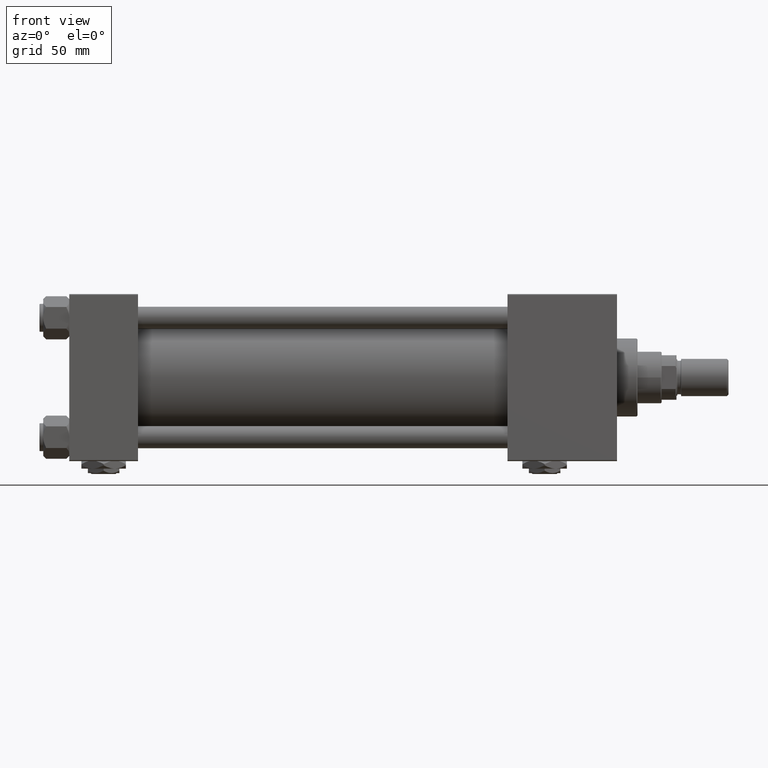
[diagram: clean part render]
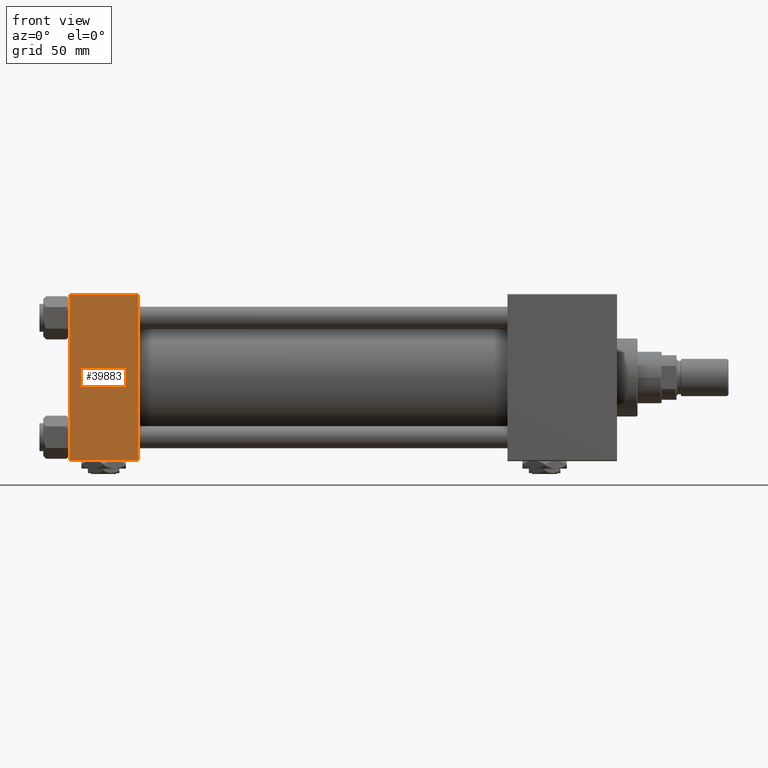
[diagram: same view with one face highlighted and labeled with its STEP entity id]
A machine part, front view. The second image highlights one B-rep face of the part: STEP entity #39883.
In plain terms, the highlighted planar face has unit normal (0, 1, 0).
Its self-contained STEP definition (entity closure, byte-faithful):
#1708 = CARTESIAN_POINT ( 'NONE',  ( 37.00000000000000000, -45.00000000000000711, 44.49999999999997158 ) ) ;
#3666 = PLANE ( 'NONE',  #35341 ) ;
#3899 = VECTOR ( 'NONE', #31182, 1000.000000000000000 ) ;
#7639 = VECTOR ( 'NONE', #11034, 1000.000000000000000 ) ;
#7804 = VECTOR ( 'NONE', #41746, 1000.000000000000000 ) ;
#8437 = ORIENTED_EDGE ( 'NONE', *, *, #22734, .T. ) ;
#9276 = DIRECTION ( 'NONE',  ( 0.000000000000000000, 7.709882115452476934E-17, -1.000000000000000000 ) ) ;
#9888 = EDGE_CURVE ( 'NONE', #23102, #23868, #42275, .T. ) ;
#11034 = DIRECTION ( 'NONE',  ( 0.000000000000000000, 7.709882115452476934E-17, -1.000000000000000000 ) ) ;
#14527 = LINE ( 'NONE', #50932, #7639 ) ;
#14770 = ORIENTED_EDGE ( 'NONE', *, *, #36168, .T. ) ;
#15004 = CARTESIAN_POINT ( 'NONE',  ( 37.00000000000000000, -45.00000000000000000, -44.49999999999995737 ) ) ;
#15703 = CARTESIAN_POINT ( 'NONE',  ( 37.00000000000000000, -45.00000000000000711, 45.00000000000000000 ) ) ;
#16762 = ORIENTED_EDGE ( 'NONE', *, *, #9888, .T. ) ;
#17807 = LINE ( 'NONE', #21827, #3899 ) ;
#20170 = VERTEX_POINT ( 'NONE', #15004 ) ;
#21573 = LINE ( 'NONE', #37387, #46373 ) ;
#21827 = CARTESIAN_POINT ( 'NONE',  ( 37.00000000000000000, -45.00000000000000000, -44.49999999999998579 ) ) ;
#22734 = EDGE_CURVE ( 'NONE', #46222, #20170, #17807, .T. ) ;
#23102 = VERTEX_POINT ( 'NONE', #1708 ) ;
#23522 = CARTESIAN_POINT ( 'NONE',  ( 0.000000000000000000, -45.00000000000000711, 44.49999999999997158 ) ) ;
#23868 = VERTEX_POINT ( 'NONE', #23522 ) ;
#24011 = CARTESIAN_POINT ( 'NONE',  ( 0.000000000000000000, -45.00000000000000000, -44.49999999999995737 ) ) ;
#25406 = CARTESIAN_POINT ( 'NONE',  ( 37.00000000000000000, -45.00000000000000711, 44.49999999999997158 ) ) ;
#31182 = DIRECTION ( 'NONE',  ( 1.000000000000000000, 0.000000000000000000, 0.000000000000000000 ) ) ;
#31507 = EDGE_CURVE ( 'NONE', #23102, #20170, #14527, .T. ) ;
#32025 = DIRECTION ( 'NONE',  ( -0.000000000000000000, 1.000000000000000000, 7.709882115452478166E-17 ) ) ;
#33500 = ORIENTED_EDGE ( 'NONE', *, *, #31507, .F. ) ;
#35341 = AXIS2_PLACEMENT_3D ( 'NONE', #15703, #32025, #48372 ) ;
#36168 = EDGE_CURVE ( 'NONE', #23868, #46222, #21573, .T. ) ;
#37387 = CARTESIAN_POINT ( 'NONE',  ( 0.000000000000000000, -45.00000000000000711, 45.00000000000000000 ) ) ;
#38661 = EDGE_LOOP ( 'NONE', ( #14770, #8437, #33500, #16762 ) ) ;
#39883 = ADVANCED_FACE ( 'NONE', ( #48103 ), #3666, .F. ) ;
#41746 = DIRECTION ( 'NONE',  ( -1.000000000000000000, 0.000000000000000000, 0.000000000000000000 ) ) ;
#42275 = LINE ( 'NONE', #25406, #7804 ) ;
#46222 = VERTEX_POINT ( 'NONE', #24011 ) ;
#46373 = VECTOR ( 'NONE', #9276, 1000.000000000000000 ) ;
#48103 = FACE_OUTER_BOUND ( 'NONE', #38661, .T. ) ;
#48372 = DIRECTION ( 'NONE',  ( 0.000000000000000000, -7.709882115452478166E-17, 1.000000000000000000 ) ) ;
#50932 = CARTESIAN_POINT ( 'NONE',  ( 37.00000000000000000, -45.00000000000000711, 45.00000000000000000 ) ) ;